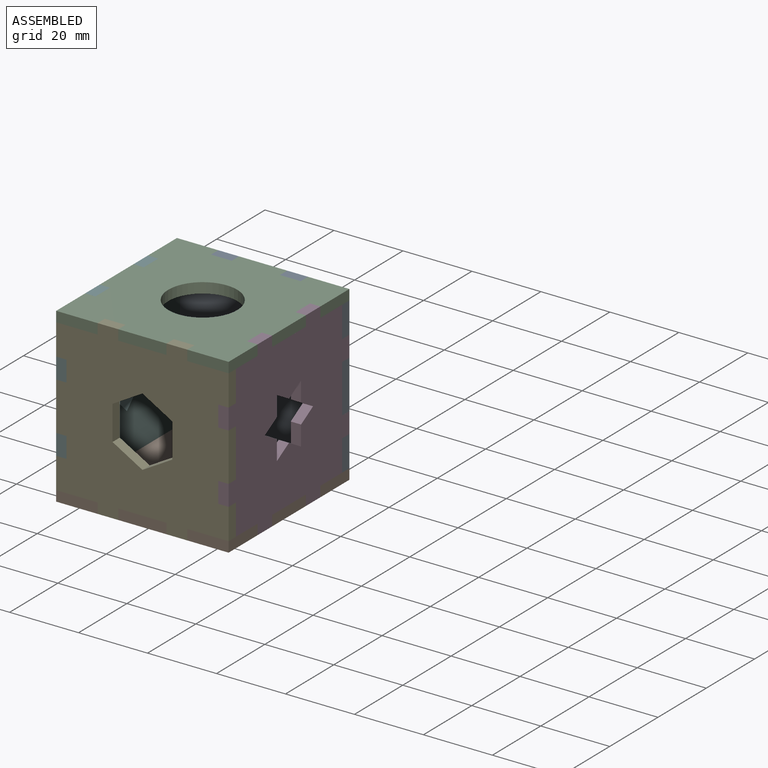
[diagram: assembled view]
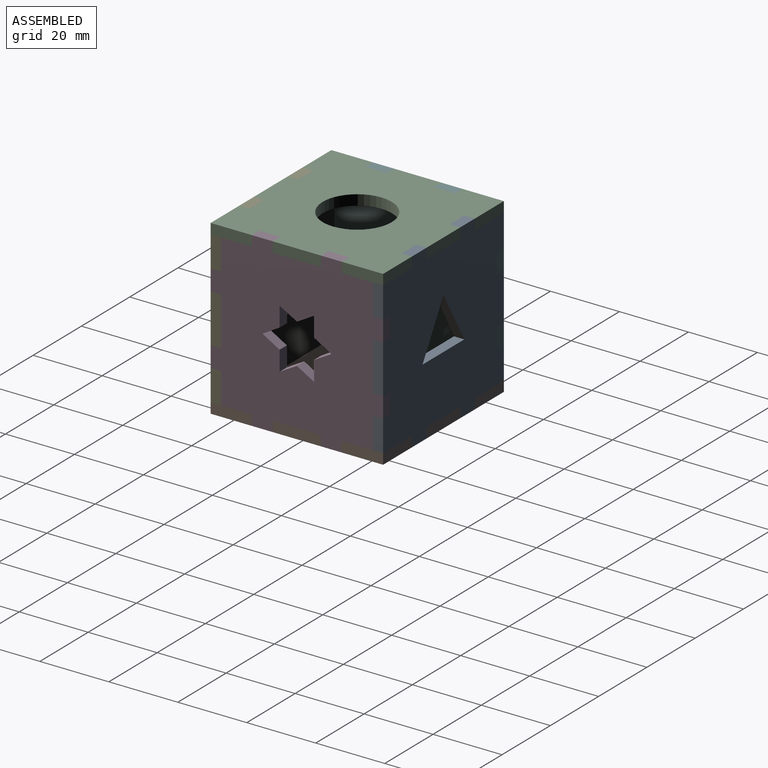
[diagram: assembled view, second angle]
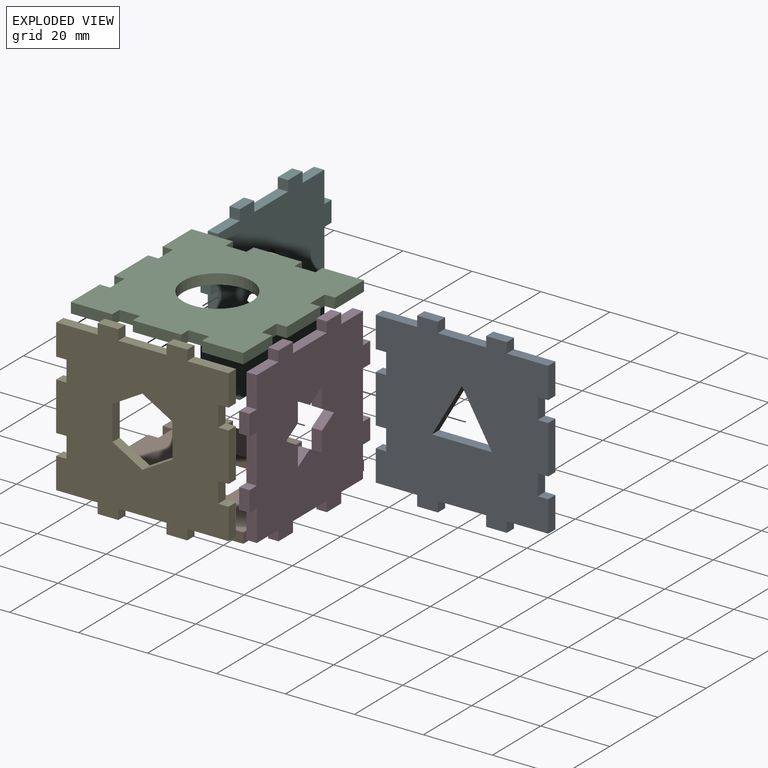
[diagram: exploded view]
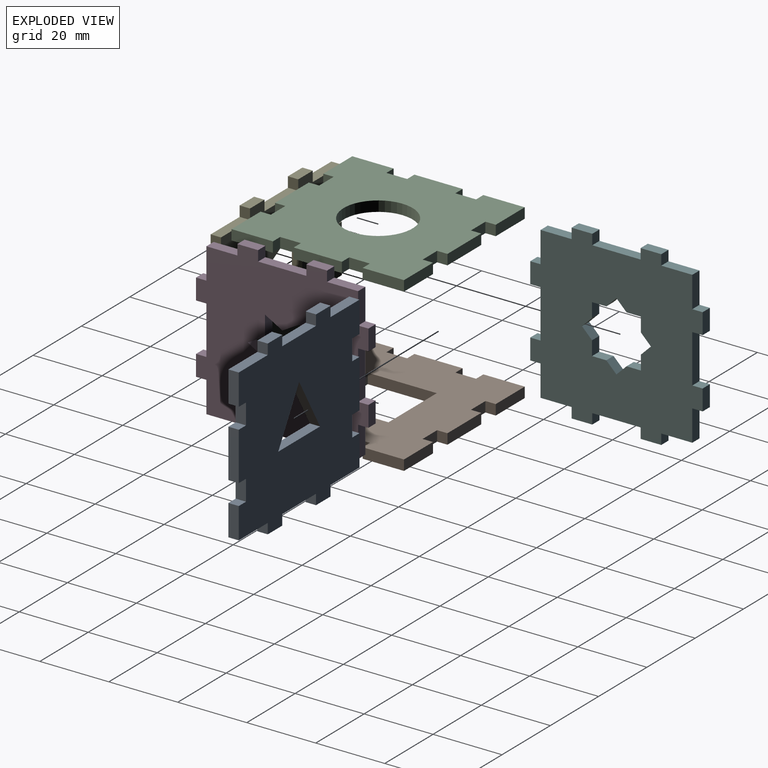
[diagram: exploded view, second angle]
ASSEMBLY  parts=6 mates=15
PART A: 41 faces, bbox 50x50x3 mm
  f0: plane 3x3mm, normal (-1,0,0), area 9mm2, adj f1,f38,f39,f40
  f1: plane 14x3mm, normal (0,1,0), area 42mm2, adj f0,f2,f39,f40
  f2: plane 3x3mm, normal (1,0,0), area 9mm2, adj f1,f3,f39,f40
  f3: plane 6x3mm, normal (0,1,0), area 18mm2, adj f2,f4,f39,f40
  f4: plane 3x3mm, normal (-1,0,0), area 9mm2, adj f3,f5,f39,f40
  f5: plane 12x3mm, normal (0,1,0), area 36mm2, adj f4,f6,f39,f40
  f6: plane 9x3mm, normal (-1,0,0), area 27mm2, adj f5,f7,f39,f40
  f7: plane 3x3mm, normal (0,-1,0), area 9mm2, adj f6,f8,f39,f40
  f8: plane 6x3mm, normal (-1,0,0), area 18mm2, adj f7,f9,f39,f40
  f9: plane 3x3mm, normal (0,1,0), area 9mm2, adj f8,f10,f39,f40
  f10: plane 14x3mm, normal (-1,0,0), area 42mm2, adj f9,f11,f39,f40
  f11: plane 3x3mm, normal (0,-1,0), area 9mm2, adj f10,f12,f39,f40
  f12: plane 6x3mm, normal (-1,0,0), area 18mm2, adj f11,f13,f39,f40
  f13: plane 3x3mm, normal (0,1,0), area 9mm2, adj f12,f14,f39,f40
  f14: plane 9x3mm, normal (-1,0,0), area 27mm2, adj f13,f15,f39,f40
  f15: plane 12x3mm, normal (0,-1,0), area 36mm2, adj f14,f16,f39,f40
  f16: plane 3x3mm, normal (-1,0,0), area 9mm2, adj f15,f17,f39,f40
  f17: plane 6x3mm, normal (0,-1,0), area 18mm2, adj f16,f18,f39,f40
  f18: plane 3x3mm, normal (1,0,0), area 9mm2, adj f17,f19,f39,f40
  f19: plane 14x3mm, normal (0,-1,0), area 42mm2, adj f18,f20,f39,f40
  f20: plane 3x3mm, normal (-1,0,0), area 9mm2, adj f19,f21,f39,f40
  f21: plane 6x3mm, normal (0,-1,0), area 18mm2, adj f20,f22,f39,f40
  f22: plane 3x3mm, normal (1,0,0), area 9mm2, adj f21,f23,f39,f40
  f23: plane 12x3mm, normal (0,-1,0), area 36mm2, adj f22,f24,f39,f40
  f24: plane 9x3mm, normal (1,0,0), area 27mm2, adj f23,f25,f39,f40
  f25: plane 3x3mm, normal (0,1,0), area 9mm2, adj f24,f26,f39,f40
  f26: plane 6x3mm, normal (1,0,0), area 18mm2, adj f25,f27,f39,f40
  f27: plane 3x3mm, normal (0,-1,0), area 9mm2, adj f26,f28,f39,f40
  f28: plane 14x3mm, normal (1,0,0), area 42mm2, adj f27,f29,f39,f40
  f29: plane 3x3mm, normal (0,1,0), area 9mm2, adj f28,f30,f39,f40
  f30: plane 6x3mm, normal (1,0,0), area 18mm2, adj f29,f31,f39,f40
  f31: plane 3x3mm, normal (0,-1,0), area 9mm2, adj f30,f32,f39,f40
  f32: plane 9x3mm, normal (1,0,0), area 27mm2, adj f31,f33,f39,f40
  f33: plane 12x3mm, normal (0,1,0), area 36mm2, adj f32,f34,f39,f40
  f34: plane 3x3mm, normal (1,0,0), area 9mm2, adj f33,f38,f39,f40
  f35: plane 15x8.66mm, normal (0.87,-0.5,0), area 52mm2, adj f36,f37,f39,f40
  f36: plane 15x8.66mm, normal (-0.87,-0.5,0), area 52mm2, adj f35,f37,f39,f40
  f37: plane 17.32x3mm, normal (0,1,0), area 52mm2, adj f35,f36,f39,f40
  f38: plane 6x3mm, normal (0,1,0), area 18mm2, adj f0,f34,f39,f40
  f39: plane 50x50mm, normal (0,0,1), area 2070.1mm2, adj f0,f1,f2,f3,f4,f5,f6,f7
  f40: plane 50x50mm, normal (0,0,-1), area 2070.1mm2, adj f0,f1,f2,f3,f4,f5,f6,f7
PART B: 42 faces, bbox 50x50x3 mm
  f0: plane 12x3mm, normal (0,1,0), area 36mm2, adj f1,f39,f40,f41
  f1: plane 3x3mm, normal (-1,0,0), area 9mm2, adj f0,f2,f40,f41
  f2: plane 6x3mm, normal (0,1,0), area 18mm2, adj f1,f3,f40,f41
  f3: plane 3x3mm, normal (1,0,0), area 9mm2, adj f2,f4,f40,f41
  f4: plane 14x3mm, normal (0,1,0), area 42mm2, adj f3,f5,f40,f41
  f5: plane 3x3mm, normal (-1,0,0), area 9mm2, adj f4,f6,f40,f41
  f6: plane 6x3mm, normal (0,1,0), area 18mm2, adj f5,f7,f40,f41
  f7: plane 3x3mm, normal (1,0,0), area 9mm2, adj f6,f8,f40,f41
  f8: plane 12x3mm, normal (0,1,0), area 36mm2, adj f7,f9,f40,f41
  f9: plane 12x3mm, normal (-1,0,0), area 36mm2, adj f8,f10,f40,f41
  f10: plane 3x3mm, normal (0,-1,0), area 9mm2, adj f9,f11,f40,f41
  f11: plane 6x3mm, normal (-1,0,0), area 18mm2, adj f10,f12,f40,f41
  f12: plane 3x3mm, normal (0,1,0), area 9mm2, adj f11,f13,f40,f41
  f13: plane 14x3mm, normal (-1,0,0), area 42mm2, adj f12,f14,f40,f41
  f14: plane 3x3mm, normal (0,-1,0), area 9mm2, adj f13,f15,f40,f41
  f15: plane 6x3mm, normal (-1,0,0), area 18mm2, adj f14,f16,f40,f41
  f16: plane 3x3mm, normal (0,1,0), area 9mm2, adj f15,f17,f40,f41
  f17: plane 12x3mm, normal (-1,0,0), area 36mm2, adj f16,f18,f40,f41
  f18: plane 12x3mm, normal (0,-1,0), area 36mm2, adj f17,f19,f40,f41
  f19: plane 3x3mm, normal (1,0,0), area 9mm2, adj f18,f20,f40,f41
  f20: plane 6x3mm, normal (0,-1,0), area 18mm2, adj f19,f21,f40,f41
  f21: plane 3x3mm, normal (-1,0,0), area 9mm2, adj f20,f22,f40,f41
  f22: plane 14x3mm, normal (0,-1,0), area 42mm2, adj f21,f23,f40,f41
  f23: plane 3x3mm, normal (1,0,0), area 9mm2, adj f22,f24,f40,f41
  f24: plane 6x3mm, normal (0,-1,0), area 18mm2, adj f23,f25,f40,f41
  f25: plane 3x3mm, normal (-1,0,0), area 9mm2, adj f24,f26,f40,f41
  f26: plane 12x3mm, normal (0,-1,0), area 36mm2, adj f25,f27,f40,f41
  f27: plane 12x3mm, normal (1,0,0), area 36mm2, adj f26,f28,f40,f41
  f28: plane 3x3mm, normal (0,1,0), area 9mm2, adj f27,f29,f40,f41
  f29: plane 6x3mm, normal (1,0,0), area 18mm2, adj f28,f30,f40,f41
  f30: plane 3x3mm, normal (0,-1,0), area 9mm2, adj f29,f31,f40,f41
  f31: plane 14x3mm, normal (1,0,0), area 42mm2, adj f30,f32,f40,f41
  f32: plane 3x3mm, normal (0,1,0), area 9mm2, adj f31,f33,f40,f41
  f33: plane 6x3mm, normal (1,0,0), area 18mm2, adj f32,f34,f40,f41
  f34: plane 3x3mm, normal (0,-1,0), area 9mm2, adj f33,f39,f40,f41
  f35: plane 20x3mm, normal (0,-1,0), area 60mm2, adj f36,f38,f40,f41
  f36: plane 20x3mm, normal (-1,0,0), area 60mm2, adj f35,f37,f40,f41
  f37: plane 20x3mm, normal (0,1,0), area 60mm2, adj f36,f38,f40,f41
  f38: plane 20x3mm, normal (1,0,0), area 60mm2, adj f35,f37,f40,f41
  f39: plane 12x3mm, normal (1,0,0), area 36mm2, adj f0,f34,f40,f41
  f40: plane 50x50mm, normal (0,0,1), area 1956mm2, adj f0,f1,f2,f3,f4,f5,f6,f7
  f41: plane 50x50mm, normal (0,0,-1), area 1956mm2, adj f0,f1,f2,f3,f4,f5,f6,f7
PART C: 39 faces, bbox 50x50x3 mm
  f0: plane 12x3mm, normal (0,1,0), area 36mm2, adj f1,f36,f37,f38
  f1: plane 3x3mm, normal (-1,0,0), area 9mm2, adj f0,f2,f37,f38
  f2: plane 6x3mm, normal (0,1,0), area 18mm2, adj f1,f3,f37,f38
  f3: plane 3x3mm, normal (1,0,0), area 9mm2, adj f2,f4,f37,f38
  f4: plane 14x3mm, normal (0,1,0), area 42mm2, adj f3,f5,f37,f38
  f5: plane 3x3mm, normal (-1,0,0), area 9mm2, adj f4,f6,f37,f38
  f6: plane 6x3mm, normal (0,1,0), area 18mm2, adj f5,f7,f37,f38
  f7: plane 3x3mm, normal (1,0,0), area 9mm2, adj f6,f8,f37,f38
  f8: plane 12x3mm, normal (0,1,0), area 36mm2, adj f7,f9,f37,f38
  f9: plane 12x3mm, normal (-1,0,0), area 36mm2, adj f8,f10,f37,f38
  f10: plane 3x3mm, normal (0,-1,0), area 9mm2, adj f9,f11,f37,f38
  f11: plane 6x3mm, normal (-1,0,0), area 18mm2, adj f10,f12,f37,f38
  f12: plane 3x3mm, normal (0,1,0), area 9mm2, adj f11,f13,f37,f38
  f13: plane 14x3mm, normal (-1,0,0), area 42mm2, adj f12,f14,f37,f38
  f14: plane 3x3mm, normal (0,-1,0), area 9mm2, adj f13,f15,f37,f38
  f15: plane 6x3mm, normal (-1,0,0), area 18mm2, adj f14,f16,f37,f38
  f16: plane 3x3mm, normal (0,1,0), area 9mm2, adj f15,f17,f37,f38
  f17: plane 12x3mm, normal (-1,0,0), area 36mm2, adj f16,f18,f37,f38
  f18: plane 12x3mm, normal (0,-1,0), area 36mm2, adj f17,f19,f37,f38
  f19: plane 3x3mm, normal (1,0,0), area 9mm2, adj f18,f20,f37,f38
  f20: plane 6x3mm, normal (0,-1,0), area 18mm2, adj f19,f21,f37,f38
  f21: plane 3x3mm, normal (-1,0,0), area 9mm2, adj f20,f22,f37,f38
  f22: plane 14x3mm, normal (0,-1,0), area 42mm2, adj f21,f23,f37,f38
  f23: plane 3x3mm, normal (1,0,0), area 9mm2, adj f22,f24,f37,f38
  f24: plane 6x3mm, normal (0,-1,0), area 18mm2, adj f23,f25,f37,f38
  f25: plane 3x3mm, normal (-1,0,0), area 9mm2, adj f24,f26,f37,f38
  f26: plane 12x3mm, normal (0,-1,0), area 36mm2, adj f25,f27,f37,f38
  f27: plane 12x3mm, normal (1,0,0), area 36mm2, adj f26,f28,f37,f38
  f28: plane 3x3mm, normal (0,1,0), area 9mm2, adj f27,f29,f37,f38
  f29: plane 6x3mm, normal (1,0,0), area 18mm2, adj f28,f30,f37,f38
  f30: plane 3x3mm, normal (0,-1,0), area 9mm2, adj f29,f31,f37,f38
  f31: plane 14x3mm, normal (1,0,0), area 42mm2, adj f30,f32,f37,f38
  f32: plane 3x3mm, normal (0,1,0), area 9mm2, adj f31,f33,f37,f38
  f33: plane 6x3mm, normal (1,0,0), area 18mm2, adj f32,f34,f37,f38
  f34: plane 3x3mm, normal (0,-1,0), area 9mm2, adj f33,f36,f37,f38
  f35: cylinder r=10mm len=20mm, axis (0,0,-1), area 188.5mm2, adj f37,f38
  f36: plane 12x3mm, normal (1,0,0), area 36mm2, adj f0,f34,f37,f38
  f37: plane 50x50mm, normal (0,0,1), area 2041.8mm2, adj f0,f1,f2,f3,f4,f5,f6,f7
  f38: plane 50x50mm, normal (0,0,-1), area 2041.8mm2, adj f0,f1,f2,f3,f4,f5,f6,f7
PART D: 50 faces, bbox 50x50x3 mm
  f0: plane 5x3mm, normal (0.87,0.5,0), area 17.3mm2, adj f1,f47,f48,f49
  f1: plane 5.77x3mm, normal (0,1,0), area 17.3mm2, adj f0,f2,f48,f49
  f2: plane 5x3mm, normal (0.87,-0.5,0), area 17.3mm2, adj f1,f3,f48,f49
  f3: plane 5x3mm, normal (0.87,0.5,0), area 17.3mm2, adj f2,f4,f48,f49
  f4: plane 5.77x3mm, normal (0,-1,0), area 17.3mm2, adj f3,f5,f48,f49
  f5: plane 5x3mm, normal (0.87,-0.5,0), area 17.3mm2, adj f4,f6,f48,f49
  f6: plane 5x3mm, normal (-0.87,-0.5,0), area 17.3mm2, adj f5,f7,f48,f49
  f7: plane 5.77x3mm, normal (0,-1,0), area 17.3mm2, adj f6,f8,f48,f49
  f8: plane 5x3mm, normal (-0.87,0.5,0), area 17.3mm2, adj f7,f9,f48,f49
  f9: plane 5x3mm, normal (-0.87,-0.5,0), area 17.3mm2, adj f8,f10,f48,f49
  f10: plane 5.77x3mm, normal (0,1,0), area 17.3mm2, adj f9,f47,f48,f49
  f11: plane 3x3mm, normal (-1,0,0), area 9mm2, adj f12,f46,f48,f49
  f12: plane 9x3mm, normal (0,1,0), area 27mm2, adj f11,f13,f48,f49
  f13: plane 9x3mm, normal (-1,0,0), area 27mm2, adj f12,f14,f48,f49
  f14: plane 3x3mm, normal (0,1,0), area 9mm2, adj f13,f15,f48,f49
  f15: plane 6x3mm, normal (-1,0,0), area 18mm2, adj f14,f16,f48,f49
  f16: plane 3x3mm, normal (0,-1,0), area 9mm2, adj f15,f17,f48,f49
  f17: plane 14x3mm, normal (-1,0,0), area 42mm2, adj f16,f18,f48,f49
  f18: plane 3x3mm, normal (0,1,0), area 9mm2, adj f17,f19,f48,f49
  f19: plane 6x3mm, normal (-1,0,0), area 18mm2, adj f18,f20,f48,f49
  f20: plane 3x3mm, normal (0,-1,0), area 9mm2, adj f19,f21,f48,f49
  f21: plane 9x3mm, normal (-1,0,0), area 27mm2, adj f20,f22,f48,f49
  f22: plane 9x3mm, normal (0,-1,0), area 27mm2, adj f21,f23,f48,f49
  f23: plane 3x3mm, normal (-1,0,0), area 9mm2, adj f22,f24,f48,f49
  f24: plane 6x3mm, normal (0,-1,0), area 18mm2, adj f23,f25,f48,f49
  f25: plane 3x3mm, normal (1,0,0), area 9mm2, adj f24,f26,f48,f49
  f26: plane 14x3mm, normal (0,-1,0), area 42mm2, adj f25,f27,f48,f49
  f27: plane 3x3mm, normal (-1,0,0), area 9mm2, adj f26,f28,f48,f49
  f28: plane 6x3mm, normal (0,-1,0), area 18mm2, adj f27,f29,f48,f49
  f29: plane 3x3mm, normal (1,0,0), area 9mm2, adj f28,f30,f48,f49
  f30: plane 9x3mm, normal (0,-1,0), area 27mm2, adj f29,f31,f48,f49
  f31: plane 9x3mm, normal (1,0,0), area 27mm2, adj f30,f32,f48,f49
  f32: plane 3x3mm, normal (0,-1,0), area 9mm2, adj f31,f33,f48,f49
  f33: plane 6x3mm, normal (1,0,0), area 18mm2, adj f32,f34,f48,f49
  f34: plane 3x3mm, normal (0,1,0), area 9mm2, adj f33,f35,f48,f49
  f35: plane 14x3mm, normal (1,0,0), area 42mm2, adj f34,f36,f48,f49
  f36: plane 3x3mm, normal (0,-1,0), area 9mm2, adj f35,f37,f48,f49
  f37: plane 6x3mm, normal (1,0,0), area 18mm2, adj f36,f38,f48,f49
  f38: plane 3x3mm, normal (0,1,0), area 9mm2, adj f37,f39,f48,f49
  f39: plane 9x3mm, normal (1,0,0), area 27mm2, adj f38,f40,f48,f49
  f40: plane 9x3mm, normal (0,1,0), area 27mm2, adj f39,f41,f48,f49
  f41: plane 3x3mm, normal (1,0,0), area 9mm2, adj f40,f42,f48,f49
  f42: plane 6x3mm, normal (0,1,0), area 18mm2, adj f41,f43,f48,f49
  f43: plane 3x3mm, normal (-1,0,0), area 9mm2, adj f42,f44,f48,f49
  f44: plane 14x3mm, normal (0,1,0), area 42mm2, adj f43,f45,f48,f49
  f45: plane 3x3mm, normal (1,0,0), area 9mm2, adj f44,f46,f48,f49
  f46: plane 6x3mm, normal (0,1,0), area 18mm2, adj f11,f45,f48,f49
  f47: plane 5x3mm, normal (-0.87,0.5,0), area 17.3mm2, adj f0,f10,f48,f49
  f48: plane 50x50mm, normal (0,0,1), area 1906.8mm2, adj f0,f1,f2,f3,f4,f5,f6,f7
  f49: plane 50x50mm, normal (0,0,-1), area 1906.8mm2, adj f0,f1,f2,f3,f4,f5,f6,f7
PART E: 44 faces, bbox 50x50x3 mm
  f0: plane 3x3mm, normal (-1,0,0), area 9mm2, adj f1,f41,f42,f43
  f1: plane 14x3mm, normal (0,1,0), area 42mm2, adj f0,f2,f42,f43
  f2: plane 3x3mm, normal (1,0,0), area 9mm2, adj f1,f3,f42,f43
  f3: plane 6x3mm, normal (0,1,0), area 18mm2, adj f2,f4,f42,f43
  f4: plane 3x3mm, normal (-1,0,0), area 9mm2, adj f3,f5,f42,f43
  f5: plane 12x3mm, normal (0,1,0), area 36mm2, adj f4,f6,f42,f43
  f6: plane 9x3mm, normal (-1,0,0), area 27mm2, adj f5,f7,f42,f43
  f7: plane 3x3mm, normal (0,-1,0), area 9mm2, adj f6,f8,f42,f43
  f8: plane 6x3mm, normal (-1,0,0), area 18mm2, adj f7,f9,f42,f43
  f9: plane 3x3mm, normal (0,1,0), area 9mm2, adj f8,f10,f42,f43
  f10: plane 14x3mm, normal (-1,0,0), area 42mm2, adj f9,f11,f42,f43
  f11: plane 3x3mm, normal (0,-1,0), area 9mm2, adj f10,f12,f42,f43
  f12: plane 6x3mm, normal (-1,0,0), area 18mm2, adj f11,f13,f42,f43
  f13: plane 3x3mm, normal (0,1,0), area 9mm2, adj f12,f14,f42,f43
  f14: plane 9x3mm, normal (-1,0,0), area 27mm2, adj f13,f15,f42,f43
  f15: plane 12x3mm, normal (0,-1,0), area 36mm2, adj f14,f16,f42,f43
  f16: plane 3x3mm, normal (-1,0,0), area 9mm2, adj f15,f17,f42,f43
  f17: plane 6x3mm, normal (0,-1,0), area 18mm2, adj f16,f18,f42,f43
  f18: plane 3x3mm, normal (1,0,0), area 9mm2, adj f17,f19,f42,f43
  f19: plane 14x3mm, normal (0,-1,0), area 42mm2, adj f18,f20,f42,f43
  f20: plane 3x3mm, normal (-1,0,0), area 9mm2, adj f19,f21,f42,f43
  f21: plane 6x3mm, normal (0,-1,0), area 18mm2, adj f20,f22,f42,f43
  f22: plane 3x3mm, normal (1,0,0), area 9mm2, adj f21,f23,f42,f43
  f23: plane 12x3mm, normal (0,-1,0), area 36mm2, adj f22,f24,f42,f43
  f24: plane 9x3mm, normal (1,0,0), area 27mm2, adj f23,f25,f42,f43
  f25: plane 3x3mm, normal (0,1,0), area 9mm2, adj f24,f26,f42,f43
  f26: plane 6x3mm, normal (1,0,0), area 18mm2, adj f25,f27,f42,f43
  f27: plane 3x3mm, normal (0,-1,0), area 9mm2, adj f26,f28,f42,f43
  f28: plane 14x3mm, normal (1,0,0), area 42mm2, adj f27,f29,f42,f43
  f29: plane 3x3mm, normal (0,1,0), area 9mm2, adj f28,f30,f42,f43
  f30: plane 6x3mm, normal (1,0,0), area 18mm2, adj f29,f31,f42,f43
  f31: plane 3x3mm, normal (0,-1,0), area 9mm2, adj f30,f32,f42,f43
  f32: plane 9x3mm, normal (1,0,0), area 27mm2, adj f31,f33,f42,f43
  f33: plane 12x3mm, normal (0,1,0), area 36mm2, adj f32,f34,f42,f43
  f34: plane 3x3mm, normal (1,0,0), area 9mm2, adj f33,f41,f42,f43
  f35: plane 8.66x5mm, normal (0.5,-0.87,0), area 30mm2, adj f36,f40,f42,f43
  f36: plane 8.66x5mm, normal (-0.5,-0.87,0), area 30mm2, adj f35,f37,f42,f43
  f37: plane 10x3mm, normal (-1,0,0), area 30mm2, adj f36,f38,f42,f43
  f38: plane 8.66x5mm, normal (-0.5,0.87,0), area 30mm2, adj f37,f39,f42,f43
  f39: plane 8.66x5mm, normal (0.5,0.87,0), area 30mm2, adj f38,f40,f42,f43
  f40: plane 10x3mm, normal (1,0,0), area 30mm2, adj f35,f39,f42,f43
  f41: plane 6x3mm, normal (0,1,0), area 18mm2, adj f0,f34,f42,f43
  f42: plane 50x50mm, normal (0,0,1), area 1940.2mm2, adj f0,f1,f2,f3,f4,f5,f6,f7
  f43: plane 50x50mm, normal (0,0,-1), area 1940.2mm2, adj f0,f1,f2,f3,f4,f5,f6,f7
PART F: 54 faces, bbox 50x50x3 mm
  f0: plane 4.14x3mm, normal (1,0,0), area 12.4mm2, adj f1,f51,f52,f53
  f1: plane 3x2.93mm, normal (0.71,0.71,0), area 12.4mm2, adj f0,f2,f52,f53
  f2: plane 3x2.93mm, normal (0.71,-0.71,0), area 12.4mm2, adj f1,f3,f52,f53
  f3: plane 4.14x3mm, normal (1,0,0), area 12.4mm2, adj f2,f4,f52,f53
  f4: plane 4.14x3mm, normal (0,-1,0), area 12.4mm2, adj f3,f5,f52,f53
  f5: plane 3x2.93mm, normal (0.71,-0.71,0), area 12.4mm2, adj f4,f6,f52,f53
  f6: plane 3x2.93mm, normal (-0.71,-0.71,0), area 12.4mm2, adj f5,f7,f52,f53
  f7: plane 4.14x3mm, normal (0,-1,0), area 12.4mm2, adj f6,f8,f52,f53
  f8: plane 4.14x3mm, normal (-1,0,0), area 12.4mm2, adj f7,f9,f52,f53
  f9: plane 3x2.93mm, normal (-0.71,-0.71,0), area 12.4mm2, adj f8,f10,f52,f53
  f10: plane 3x2.93mm, normal (-0.71,0.71,0), area 12.4mm2, adj f9,f11,f52,f53
  f11: plane 4.14x3mm, normal (-1,0,0), area 12.4mm2, adj f10,f12,f52,f53
  f12: plane 4.14x3mm, normal (0,1,0), area 12.4mm2, adj f11,f13,f52,f53
  f13: plane 3x2.93mm, normal (-0.71,0.71,0), area 12.4mm2, adj f12,f14,f52,f53
  f14: plane 3x2.93mm, normal (0.71,0.71,0), area 12.4mm2, adj f13,f51,f52,f53
  f15: plane 3x3mm, normal (0,-1,0), area 9mm2, adj f16,f50,f52,f53
  f16: plane 14x3mm, normal (-1,0,0), area 42mm2, adj f15,f17,f52,f53
  f17: plane 3x3mm, normal (0,1,0), area 9mm2, adj f16,f18,f52,f53
  f18: plane 6x3mm, normal (-1,0,0), area 18mm2, adj f17,f19,f52,f53
  f19: plane 3x3mm, normal (0,-1,0), area 9mm2, adj f18,f20,f52,f53
  f20: plane 9x3mm, normal (-1,0,0), area 27mm2, adj f19,f21,f52,f53
  f21: plane 9x3mm, normal (0,-1,0), area 27mm2, adj f20,f22,f52,f53
  f22: plane 3x3mm, normal (-1,0,0), area 9mm2, adj f21,f23,f52,f53
  f23: plane 6x3mm, normal (0,-1,0), area 18mm2, adj f22,f24,f52,f53
  f24: plane 3x3mm, normal (1,0,0), area 9mm2, adj f23,f25,f52,f53
  f25: plane 14x3mm, normal (0,-1,0), area 42mm2, adj f24,f26,f52,f53
  f26: plane 3x3mm, normal (-1,0,0), area 9mm2, adj f25,f27,f52,f53
  f27: plane 6x3mm, normal (0,-1,0), area 18mm2, adj f26,f28,f52,f53
  f28: plane 3x3mm, normal (1,0,0), area 9mm2, adj f27,f29,f52,f53
  f29: plane 9x3mm, normal (0,-1,0), area 27mm2, adj f28,f30,f52,f53
  f30: plane 9x3mm, normal (1,0,0), area 27mm2, adj f29,f31,f52,f53
  f31: plane 3x3mm, normal (0,-1,0), area 9mm2, adj f30,f32,f52,f53
  f32: plane 6x3mm, normal (1,0,0), area 18mm2, adj f31,f33,f52,f53
  f33: plane 3x3mm, normal (0,1,0), area 9mm2, adj f32,f34,f52,f53
  f34: plane 14x3mm, normal (1,0,0), area 42mm2, adj f33,f35,f52,f53
  f35: plane 3x3mm, normal (0,-1,0), area 9mm2, adj f34,f36,f52,f53
  f36: plane 6x3mm, normal (1,0,0), area 18mm2, adj f35,f37,f52,f53
  f37: plane 3x3mm, normal (0,1,0), area 9mm2, adj f36,f38,f52,f53
  f38: plane 9x3mm, normal (1,0,0), area 27mm2, adj f37,f39,f52,f53
  f39: plane 9x3mm, normal (0,1,0), area 27mm2, adj f38,f40,f52,f53
  f40: plane 3x3mm, normal (1,0,0), area 9mm2, adj f39,f41,f52,f53
  f41: plane 6x3mm, normal (0,1,0), area 18mm2, adj f40,f42,f52,f53
  f42: plane 3x3mm, normal (-1,0,0), area 9mm2, adj f41,f43,f52,f53
  f43: plane 14x3mm, normal (0,1,0), area 42mm2, adj f42,f44,f52,f53
  f44: plane 3x3mm, normal (1,0,0), area 9mm2, adj f43,f45,f52,f53
  f45: plane 6x3mm, normal (0,1,0), area 18mm2, adj f44,f46,f52,f53
  f46: plane 3x3mm, normal (-1,0,0), area 9mm2, adj f45,f47,f52,f53
  f47: plane 9x3mm, normal (0,1,0), area 27mm2, adj f46,f48,f52,f53
  f48: plane 9x3mm, normal (-1,0,0), area 27mm2, adj f47,f49,f52,f53
  f49: plane 3x3mm, normal (0,1,0), area 9mm2, adj f48,f50,f52,f53
  f50: plane 6x3mm, normal (-1,0,0), area 18mm2, adj f15,f49,f52,f53
  f51: plane 4.14x3mm, normal (0,1,0), area 12.4mm2, adj f0,f14,f52,f53
  f52: plane 50x50mm, normal (0,0,1), area 1845.7mm2, adj f0,f1,f2,f3,f4,f5,f6,f7
  f53: plane 50x50mm, normal (0,0,-1), area 1845.7mm2, adj f0,f1,f2,f3,f4,f5,f6,f7
PLACE A rot(axis=(1,0,0),90deg) t=(0,25,25)mm
PLACE B at identity fixed
PLACE C t=(0,0,47)mm
PLACE D rot(axis=(0,-1,0),90deg) t=(25,0,25)mm
PLACE E rot(axis=(1,0,0),90deg) t=(0,-22,25)mm
PLACE F rot(axis=(0,-1,0),90deg) t=(-22,0,25)mm
MATE planar F.f52 <-> C.f9  axis (-1,0,0) through (-25,0,25)mm
MATE planar E.f42 <-> B.f26  axis (0,-1,0) through (25,-25,7.5)mm
MATE planar E.f19 <-> B.f40  axis (0,0,-1) through (0,-23.5,3)mm
MATE planar C.f35 <-> D.f37  axis (0,0,1) through (0,0,50)mm
MATE planar D.f49 <-> E.f28  axis (1,0,0) through (25,0,25)mm
MATE planar B.f39 <-> A.f28  axis (1,0,0) through (25,19,1.5)mm
MATE planar E.f42 <-> D.f24  axis (0,-1,0) through (8.66,-25,30)mm
MATE planar E.f28 <-> B.f27  axis (1,0,0) through (25,-22,25)mm
MATE planar E.f42 <-> C.f22  axis (0,-1,0) through (25,-25,32)mm
MATE planar B.f40 <-> A.f19  axis (0,0,1) through (0,0,3)mm
MATE planar A.f40 <-> B.f0  axis (0,1,0) through (0,25,25)mm
MATE planar E.f33 <-> C.f38  axis (0,0,1) through (19,-23.5,47)mm
MATE planar F.f23 <-> E.f42  axis (0,-1,0) through (-23.5,-25,15)mm
MATE planar E.f28 <-> C.f27  axis (1,0,0) through (25,-23.5,25)mm
MATE planar C.f35 <-> F.f32  axis (0,0,1) through (0,0,50)mm
